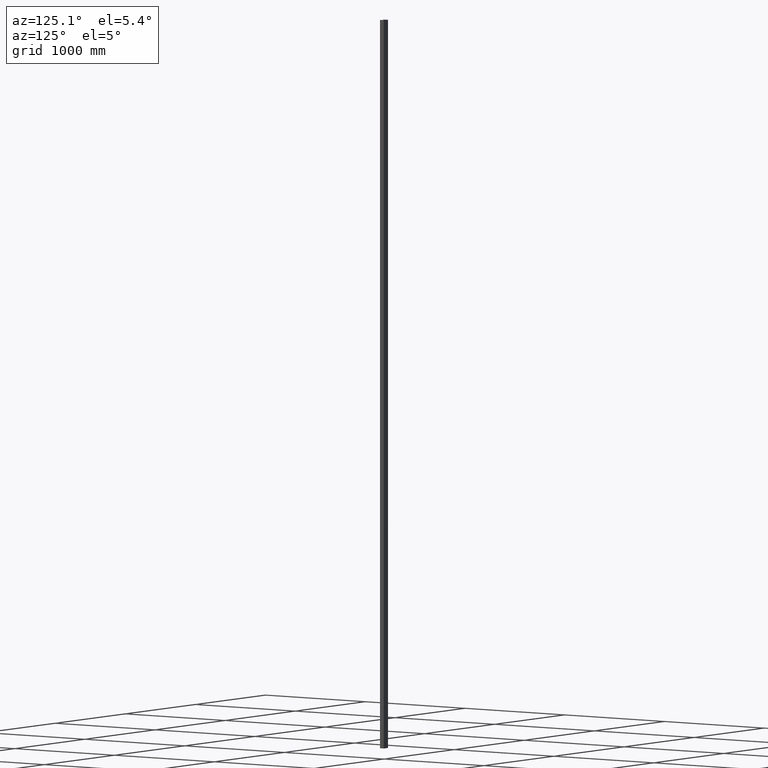
[diagram: clean part render]
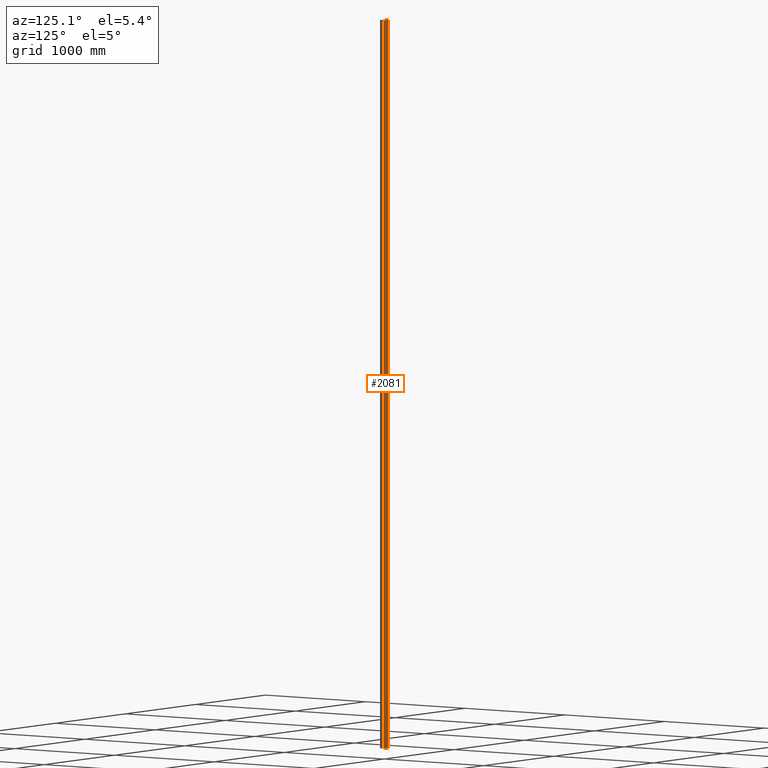
[diagram: same view with one face highlighted and labeled with its STEP entity id]
A machine part, auxiliary view. The second image highlights one B-rep face of the part: STEP entity #2081.
In plain terms, the highlighted planar face has unit normal (0, -1, 0).
Its self-contained STEP definition (entity closure, byte-faithful):
#237 = CARTESIAN_POINT ( 'NONE',  ( -28.00000000000000355, 19.99999999999999645, 3000.000000000000000 ) ) ;
#472 = CARTESIAN_POINT ( 'NONE',  ( -28.00000000000000355, 19.99999999999999645, -3000.000000000000000 ) ) ;
#1961 = EDGE_CURVE ( 'NONE', #7344, #12939, #10613, .T. ) ;
#2081 = ADVANCED_FACE ( 'NONE', ( #2458 ), #9301, .F. ) ;
#2157 = CARTESIAN_POINT ( 'NONE',  ( 27.99999999999999645, 19.99999999999999645, 3000.000000000000000 ) ) ;
#2182 = DIRECTION ( 'NONE',  ( -1.000000000000000000, -0.000000000000000000, -0.000000000000000000 ) ) ;
#2458 = FACE_OUTER_BOUND ( 'NONE', #5892, .T. ) ;
#2652 = DIRECTION ( 'NONE',  ( -0.000000000000000000, -0.000000000000000000, -1.000000000000000000 ) ) ;
#4280 = DIRECTION ( 'NONE',  ( 0.000000000000000000, -0.000000000000000000, -1.000000000000000000 ) ) ;
#4557 = CARTESIAN_POINT ( 'NONE',  ( 27.99999999999999645, 19.99999999999999645, 3000.000000000000000 ) ) ;
#4767 = EDGE_CURVE ( 'NONE', #7762, #7344, #5060, .T. ) ;
#5060 = LINE ( 'NONE', #12561, #11591 ) ;
#5340 = VECTOR ( 'NONE', #2652, 1000.000000000000000 ) ;
#5892 = EDGE_LOOP ( 'NONE', ( #16140, #10975, #6475, #12806 ) ) ;
#6475 = ORIENTED_EDGE ( 'NONE', *, *, #4767, .F. ) ;
#7212 = EDGE_CURVE ( 'NONE', #7762, #12425, #8882, .T. ) ;
#7344 = VERTEX_POINT ( 'NONE', #7461 ) ;
#7461 = CARTESIAN_POINT ( 'NONE',  ( -28.00000000000000355, 19.99999999999999645, 3000.000000000000000 ) ) ;
#7676 = EDGE_CURVE ( 'NONE', #12425, #12939, #8666, .T. ) ;
#7762 = VERTEX_POINT ( 'NONE', #2157 ) ;
#8521 = CARTESIAN_POINT ( 'NONE',  ( -28.00000000000000355, 19.99999999999999645, -3000.000000000000000 ) ) ;
#8666 = LINE ( 'NONE', #8521, #9284 ) ;
#8882 = LINE ( 'NONE', #4557, #10110 ) ;
#9284 = VECTOR ( 'NONE', #12535, 1000.000000000000000 ) ;
#9301 = PLANE ( 'NONE',  #14798 ) ;
#9359 = DIRECTION ( 'NONE',  ( 0.000000000000000000, -1.000000000000000000, 0.000000000000000000 ) ) ;
#10110 = VECTOR ( 'NONE', #12315, 1000.000000000000000 ) ;
#10613 = LINE ( 'NONE', #12920, #5340 ) ;
#10975 = ORIENTED_EDGE ( 'NONE', *, *, #1961, .F. ) ;
#11591 = VECTOR ( 'NONE', #2182, 1000.000000000000000 ) ;
#12315 = DIRECTION ( 'NONE',  ( -0.000000000000000000, -0.000000000000000000, -1.000000000000000000 ) ) ;
#12425 = VERTEX_POINT ( 'NONE', #16227 ) ;
#12535 = DIRECTION ( 'NONE',  ( -1.000000000000000000, -0.000000000000000000, -0.000000000000000000 ) ) ;
#12561 = CARTESIAN_POINT ( 'NONE',  ( -28.00000000000000355, 19.99999999999999645, 3000.000000000000000 ) ) ;
#12806 = ORIENTED_EDGE ( 'NONE', *, *, #7212, .T. ) ;
#12920 = CARTESIAN_POINT ( 'NONE',  ( -28.00000000000000355, 19.99999999999999645, 3000.000000000000000 ) ) ;
#12939 = VERTEX_POINT ( 'NONE', #472 ) ;
#14798 = AXIS2_PLACEMENT_3D ( 'NONE', #237, #9359, #4280 ) ;
#16140 = ORIENTED_EDGE ( 'NONE', *, *, #7676, .T. ) ;
#16227 = CARTESIAN_POINT ( 'NONE',  ( 27.99999999999999645, 19.99999999999999645, -3000.000000000000000 ) ) ;